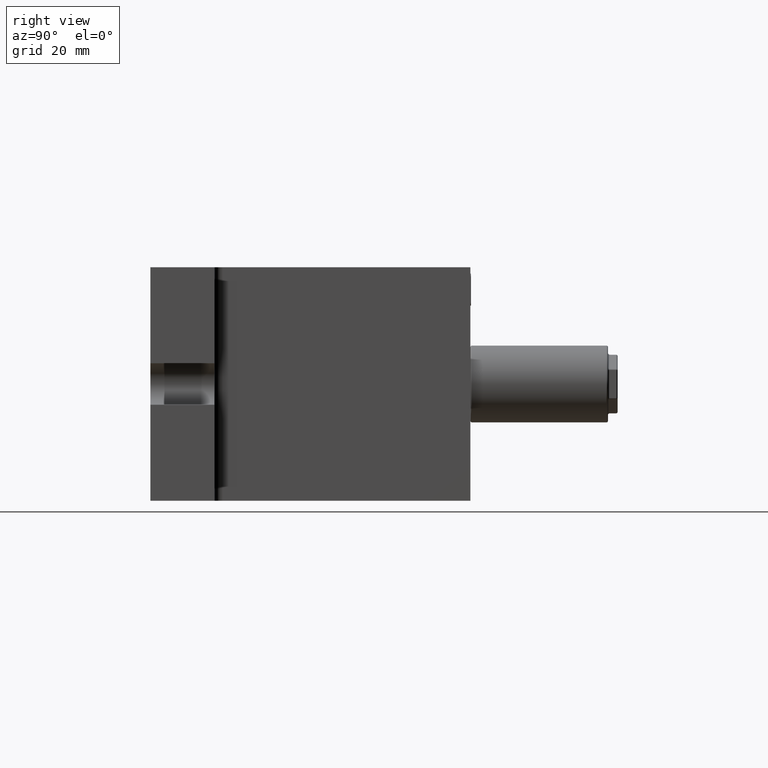
[diagram: clean part render]
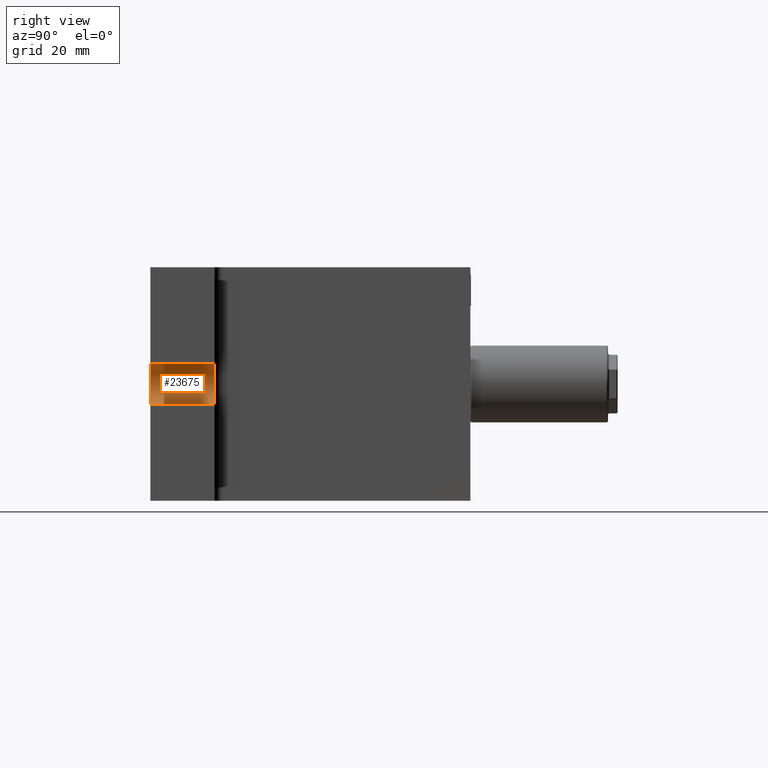
[diagram: same view with one face highlighted and labeled with its STEP entity id]
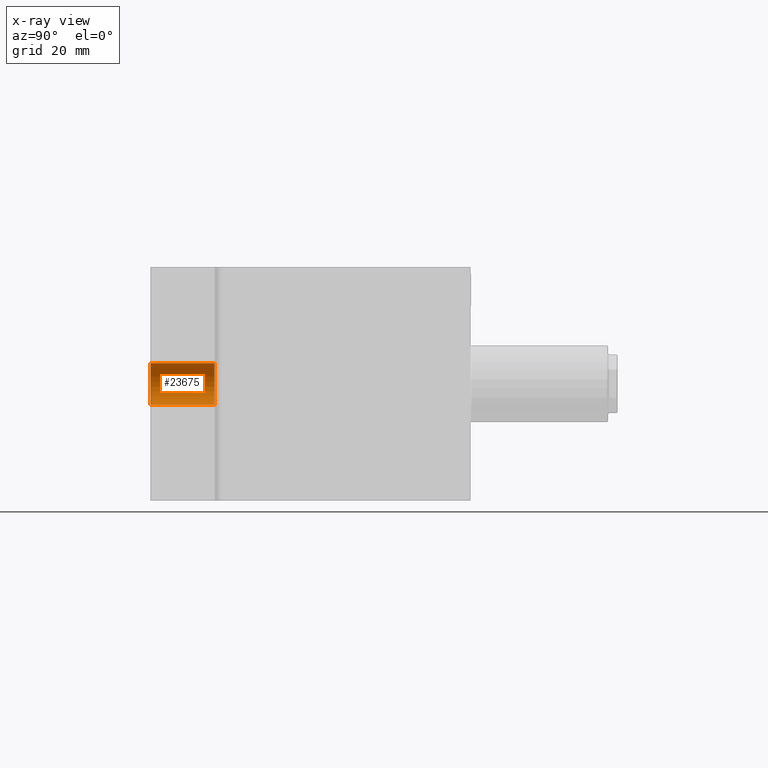
[diagram: x-ray of the same camera — body ghosted, the highlighted face saturated]
A machine part, right view. The second image highlights one B-rep face of the part: STEP entity #23675.
The next image is the same camera in x-ray: the body ghosted, the highlighted face saturated — about 0% of this face is hidden behind the body in this view.
In plain terms, the highlighted cylindrical surface (edge-blend (fillet) strip) has radius 6.5 mm, axis along (0, 1, 0).
Its self-contained STEP definition (entity closure, byte-faithful):
#426 = LINE ( 'NONE', #23022, #14697 ) ;
#1129 = DIRECTION ( 'NONE',  ( 0.0000000000000000000, 0.0000000000000000000, 1.000000000000000000 ) ) ;
#2401 = CIRCLE ( 'NONE', #10446, 6.500000000000000000 ) ;
#3645 = EDGE_LOOP ( 'NONE', ( #15435, #6072, #14114, #11207 ) ) ;
#4467 = DIRECTION ( 'NONE',  ( 0.0000000000000000000, 1.000000000000000000, 0.0000000000000000000 ) ) ;
#4923 = DIRECTION ( 'NONE',  ( 0.0000000000000000000, 1.000000000000000000, 0.0000000000000000000 ) ) ;
#5177 = AXIS2_PLACEMENT_3D ( 'NONE', #22845, #19104, #9603 ) ;
#5186 = CARTESIAN_POINT ( 'NONE',  ( 65.00000000000000000, -50.00000000000000000, 6.500000000000000000 ) ) ;
#5328 = VERTEX_POINT ( 'NONE', #9253 ) ;
#5871 = VERTEX_POINT ( 'NONE', #21966 ) ;
#6072 = ORIENTED_EDGE ( 'NONE', *, *, #6684, .F. ) ;
#6684 = EDGE_CURVE ( 'NONE', #21365, #22632, #426, .T. ) ;
#6956 = DIRECTION ( 'NONE',  ( 0.0000000000000000000, 0.0000000000000000000, 1.000000000000000000 ) ) ;
#8418 = CARTESIAN_POINT ( 'NONE',  ( 65.00000000000000000, -30.00000000000000000, 6.500000000000000000 ) ) ;
#8691 = EDGE_CURVE ( 'NONE', #5871, #22632, #2401, .T. ) ;
#9150 = EDGE_CURVE ( 'NONE', #5328, #5871, #23560, .T. ) ;
#9253 = CARTESIAN_POINT ( 'NONE',  ( 65.00000000000000000, -50.00000000000000000, -6.500000000000000000 ) ) ;
#9494 = CYLINDRICAL_SURFACE ( 'NONE', #9755, 6.500000000000000000 ) ;
#9603 = DIRECTION ( 'NONE',  ( 0.0000000000000000000, 0.0000000000000000000, 1.000000000000000000 ) ) ;
#9755 = AXIS2_PLACEMENT_3D ( 'NONE', #22146, #18669, #6956 ) ;
#10446 = AXIS2_PLACEMENT_3D ( 'NONE', #20278, #4923, #1129 ) ;
#11043 = FACE_OUTER_BOUND ( 'NONE', #3645, .T. ) ;
#11207 = ORIENTED_EDGE ( 'NONE', *, *, #9150, .T. ) ;
#13299 = VECTOR ( 'NONE', #4467, 1000.000000000000000 ) ;
#14114 = ORIENTED_EDGE ( 'NONE', *, *, #21380, .F. ) ;
#14697 = VECTOR ( 'NONE', #21150, 1000.000000000000000 ) ;
#15435 = ORIENTED_EDGE ( 'NONE', *, *, #8691, .T. ) ;
#16083 = CARTESIAN_POINT ( 'NONE',  ( 65.00000000000000000, -50.00000000000000000, -6.500000000000000000 ) ) ;
#18551 = CIRCLE ( 'NONE', #5177, 6.500000000000000000 ) ;
#18669 = DIRECTION ( 'NONE',  ( 0.0000000000000000000, 1.000000000000000000, 0.0000000000000000000 ) ) ;
#19104 = DIRECTION ( 'NONE',  ( 0.0000000000000000000, 1.000000000000000000, 0.0000000000000000000 ) ) ;
#20278 = CARTESIAN_POINT ( 'NONE',  ( 65.00000000000000000, -30.00000000000000000, -4.592273826833919500E-015 ) ) ;
#21150 = DIRECTION ( 'NONE',  ( 0.0000000000000000000, 1.000000000000000000, 0.0000000000000000000 ) ) ;
#21365 = VERTEX_POINT ( 'NONE', #5186 ) ;
#21380 = EDGE_CURVE ( 'NONE', #5328, #21365, #18551, .T. ) ;
#21966 = CARTESIAN_POINT ( 'NONE',  ( 65.00000000000000000, -30.00000000000000000, -6.500000000000000000 ) ) ;
#22146 = CARTESIAN_POINT ( 'NONE',  ( 65.00000000000000000, -50.00000000000000000, -4.592273826833919500E-015 ) ) ;
#22632 = VERTEX_POINT ( 'NONE', #8418 ) ;
#22845 = CARTESIAN_POINT ( 'NONE',  ( 65.00000000000000000, -50.00000000000000000, -4.592273826833919500E-015 ) ) ;
#23022 = CARTESIAN_POINT ( 'NONE',  ( 65.00000000000000000, -50.00000000000000000, 6.500000000000000000 ) ) ;
#23560 = LINE ( 'NONE', #16083, #13299 ) ;
#23675 = ADVANCED_FACE ( 'NONE', ( #11043 ), #9494, .F. ) ;